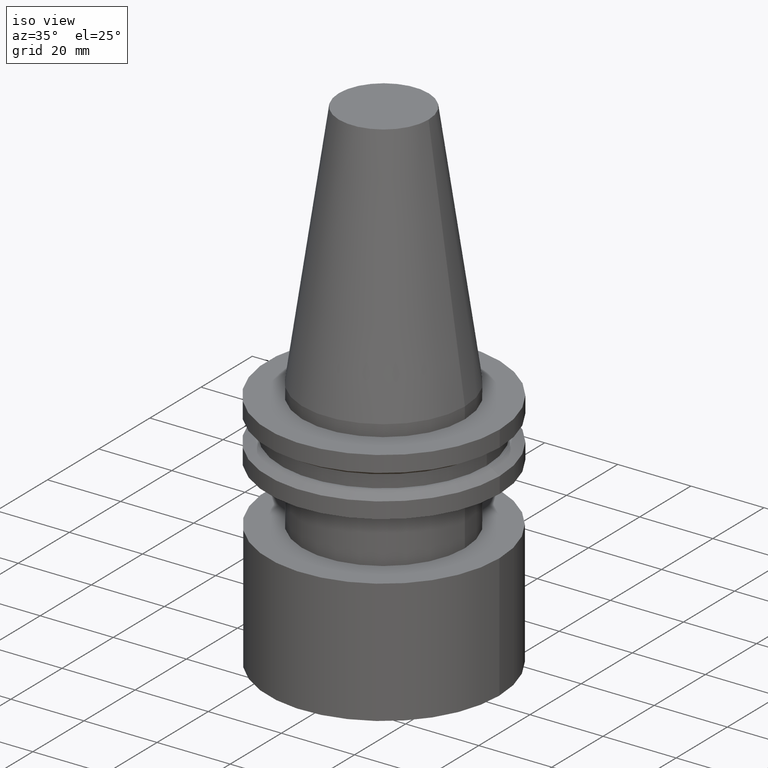
[diagram: clean part render]
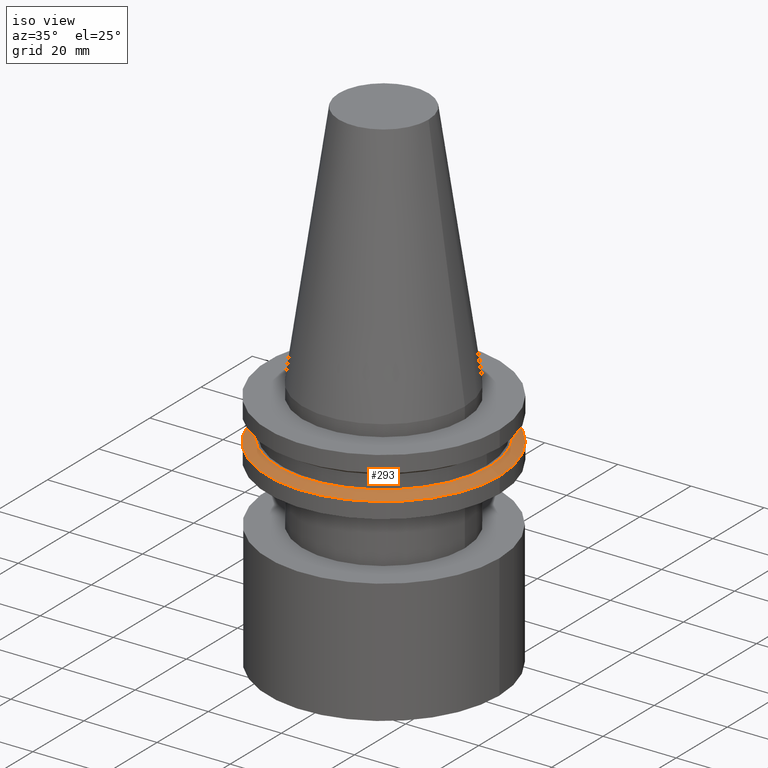
[diagram: same view with one face highlighted and labeled with its STEP entity id]
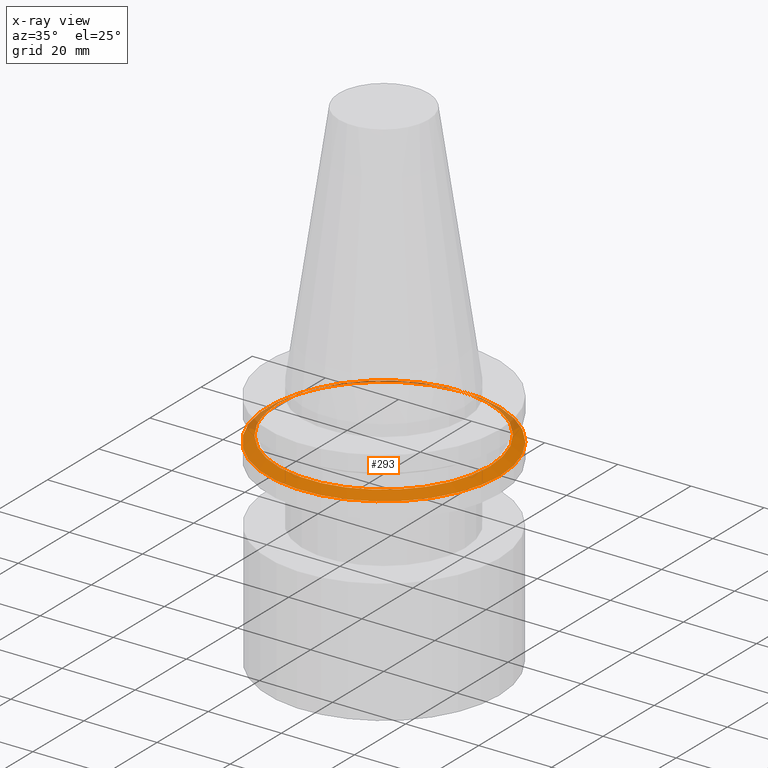
[diagram: x-ray of the same camera — body ghosted, the highlighted face saturated]
A machine part, iso view. The second image highlights one B-rep face of the part: STEP entity #293.
The next image is the same camera in x-ray: the body ghosted, the highlighted face saturated — about 12% of this face is hidden behind the body in this view.
In plain terms, the highlighted conical surface has half-angle 60 deg.
Its self-contained STEP definition (entity closure, byte-faithful):
#4 = CIRCLE ( 'NONE', #322, 31.75000000000000000 ) ;
#17 = CONICAL_SURFACE ( 'NONE', #264, 31.75000000000000000, 1.047197551196597853 ) ;
#31 = FACE_OUTER_BOUND ( 'NONE', #132, .T. ) ;
#47 = DIRECTION ( 'NONE',  ( -0.000000000000000000, -0.000000000000000000, 1.000000000000000000 ) ) ;
#49 = EDGE_LOOP ( 'NONE', ( #318 ) ) ;
#56 = CARTESIAN_POINT ( 'NONE',  ( 0.000000000000000000, 0.000000000000000000, -14.65472339340266572 ) ) ;
#57 = EDGE_CURVE ( 'NONE', #153, #153, #4, .T. ) ;
#65 = VERTEX_POINT ( 'NONE', #101 ) ;
#70 = CARTESIAN_POINT ( 'NONE',  ( 0.000000000000000000, 0.000000000000000000, -14.65472339340266572 ) ) ;
#78 = CARTESIAN_POINT ( 'NONE',  ( 0.000000000000000000, 0.000000000000000000, -13.05499999999999794 ) ) ;
#101 = CARTESIAN_POINT ( 'NONE',  ( 28.97919780457008088, 0.000000000000000000, -13.05499999999999794 ) ) ;
#114 = DIRECTION ( 'NONE',  ( 1.000000000000000000, 0.000000000000000000, 0.000000000000000000 ) ) ;
#121 = DIRECTION ( 'NONE',  ( -1.000000000000000000, 0.000000000000000000, 0.000000000000000000 ) ) ;
#124 = EDGE_CURVE ( 'NONE', #65, #65, #377, .T. ) ;
#131 = ORIENTED_EDGE ( 'NONE', *, *, #57, .T. ) ;
#132 = EDGE_LOOP ( 'NONE', ( #131 ) ) ;
#153 = VERTEX_POINT ( 'NONE', #274 ) ;
#189 = FACE_BOUND ( 'NONE', #49, .T. ) ;
#206 = DIRECTION ( 'NONE',  ( 1.000000000000000000, 0.000000000000000000, 0.000000000000000000 ) ) ;
#235 = DIRECTION ( 'NONE',  ( -0.000000000000000000, -0.000000000000000000, 1.000000000000000000 ) ) ;
#256 = AXIS2_PLACEMENT_3D ( 'NONE', #78, #47, #206 ) ;
#264 = AXIS2_PLACEMENT_3D ( 'NONE', #56, #369, #121 ) ;
#274 = CARTESIAN_POINT ( 'NONE',  ( 31.75000000000000000, 0.000000000000000000, -14.65472339340266572 ) ) ;
#293 = ADVANCED_FACE ( 'NONE', ( #189, #31 ), #17, .T. ) ;
#318 = ORIENTED_EDGE ( 'NONE', *, *, #124, .F. ) ;
#322 = AXIS2_PLACEMENT_3D ( 'NONE', #70, #235, #114 ) ;
#369 = DIRECTION ( 'NONE',  ( 0.000000000000000000, 0.000000000000000000, -1.000000000000000000 ) ) ;
#377 = CIRCLE ( 'NONE', #256, 28.97919780457008088 ) ;